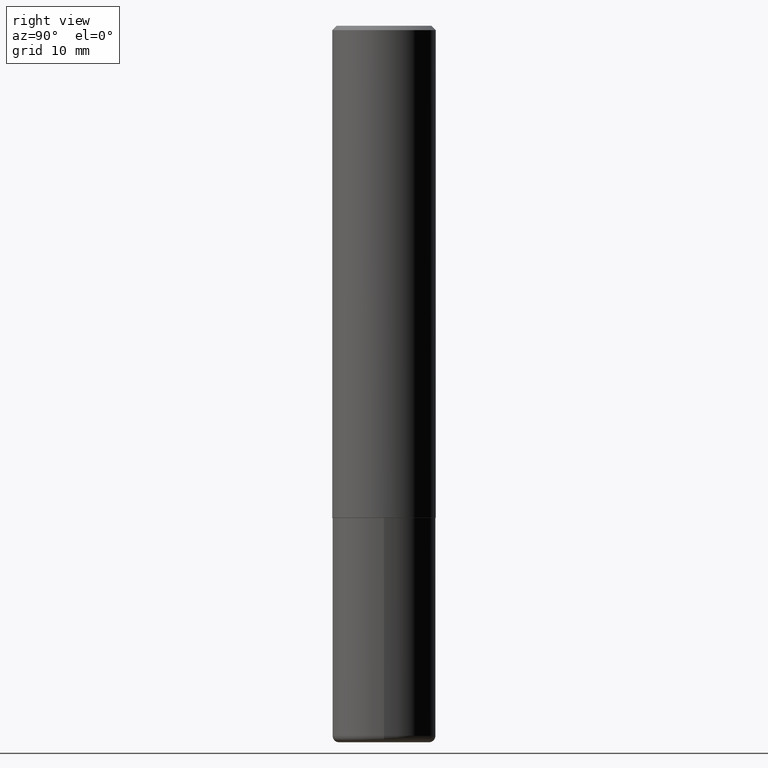
[diagram: clean part render]
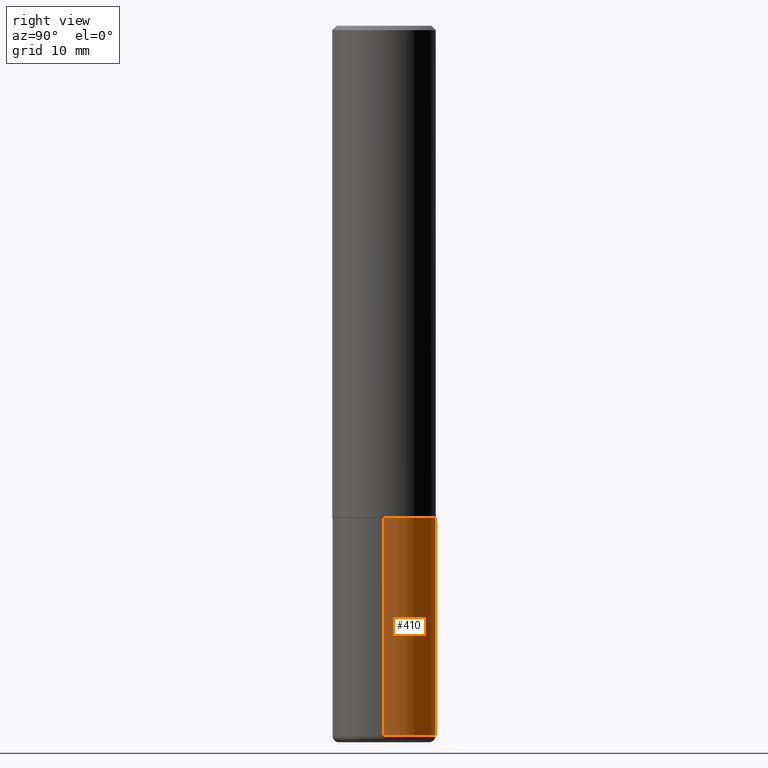
[diagram: same view with one face highlighted and labeled with its STEP entity id]
A machine part, right view. The second image highlights one B-rep face of the part: STEP entity #410.
In plain terms, the highlighted cylindrical surface (partial cylindrical patch) has radius 5.9995 mm, axis along (-0, 0, 1).
Its self-contained STEP definition (entity closure, byte-faithful):
#1 = DIRECTION ( 'NONE',  ( -2.445468806185136877E-29, 3.491481338843145188E-15, 1.000000000000000000 ) ) ;
#3 = CARTESIAN_POINT ( 'NONE',  ( 0.2361999999999999933, -9.484609056967400443E-15, -2.244100000000000428 ) ) ;
#4 = VECTOR ( 'NONE', #1, 39.37007874015748143 ) ;
#21 = ORIENTED_EDGE ( 'NONE', *, *, #30, .T. ) ;
#23 = CARTESIAN_POINT ( 'NONE',  ( 7.917694353785617077E-29, -1.130436913077245307E-14, -3.237700000000000244 ) ) ;
#30 = EDGE_CURVE ( 'NONE', #84, #211, #381, .T. ) ;
#47 = CYLINDRICAL_SURFACE ( 'NONE', #226, 0.2361999999999999933 ) ;
#81 = EDGE_CURVE ( 'NONE', #252, #84, #104, .T. ) ;
#84 = VERTEX_POINT ( 'NONE', #347 ) ;
#102 = DIRECTION ( 'NONE',  ( 1.000000000000000000, -6.982962677686269077E-15, 0.000000000000000000 ) ) ;
#104 = CIRCLE ( 'NONE', #294, 0.2361999999999999655 ) ;
#106 = AXIS2_PLACEMENT_3D ( 'NONE', #227, #358, #102 ) ;
#115 = EDGE_LOOP ( 'NONE', ( #125, #21, #310, #364 ) ) ;
#125 = ORIENTED_EDGE ( 'NONE', *, *, #81, .T. ) ;
#140 = CARTESIAN_POINT ( 'NONE',  ( -0.2361999999999999933, -7.891499259769821311E-15, -2.244100000000000428 ) ) ;
#150 = DIRECTION ( 'NONE',  ( -2.445468806185136877E-29, 3.491481338843145188E-15, 1.000000000000000000 ) ) ;
#181 = CARTESIAN_POINT ( 'NONE',  ( 0.000000000000000000, 0.000000000000000000, 0.000000000000000000 ) ) ;
#185 = CARTESIAN_POINT ( 'NONE',  ( 0.2361999999999999933, -1.649375784469496131E-15, 1.151752954443000088E-29 ) ) ;
#195 = CARTESIAN_POINT ( 'NONE',  ( -0.2361999999999999933, 1.678301941865356591E-15, -1.161852468318208757E-29 ) ) ;
#211 = VERTEX_POINT ( 'NONE', #140 ) ;
#215 = VERTEX_POINT ( 'NONE', #3 ) ;
#218 = DIRECTION ( 'NONE',  ( -2.445468806185136597E-29, 3.491481338843145583E-15, 1.000000000000000000 ) ) ;
#226 = AXIS2_PLACEMENT_3D ( 'NONE', #181, #404, #302 ) ;
#227 = CARTESIAN_POINT ( 'NONE',  ( 5.487876547960065873E-29, -7.835233272497903917E-15, -2.244100000000000428 ) ) ;
#252 = VERTEX_POINT ( 'NONE', #388 ) ;
#275 = EDGE_CURVE ( 'NONE', #215, #211, #308, .T. ) ;
#276 = FACE_OUTER_BOUND ( 'NONE', #115, .T. ) ;
#294 = AXIS2_PLACEMENT_3D ( 'NONE', #23, #218, #351 ) ;
#299 = LINE ( 'NONE', #185, #409 ) ;
#302 = DIRECTION ( 'NONE',  ( 1.000000000000000000, -6.982962677686266711E-15, 4.876176775795936353E-29 ) ) ;
#308 = CIRCLE ( 'NONE', #106, 0.2361999999999999933 ) ;
#310 = ORIENTED_EDGE ( 'NONE', *, *, #275, .F. ) ;
#347 = CARTESIAN_POINT ( 'NONE',  ( -0.2361999999999999655, -9.626067188907095099E-15, -3.237700000000000244 ) ) ;
#351 = DIRECTION ( 'NONE',  ( 1.000000000000000000, -6.982962677686265922E-15, 0.000000000000000000 ) ) ;
#358 = DIRECTION ( 'NONE',  ( -2.445468806185136597E-29, 3.491481338843145583E-15, 1.000000000000000000 ) ) ;
#364 = ORIENTED_EDGE ( 'NONE', *, *, #385, .F. ) ;
#381 = LINE ( 'NONE', #195, #4 ) ;
#385 = EDGE_CURVE ( 'NONE', #252, #215, #299, .T. ) ;
#388 = CARTESIAN_POINT ( 'NONE',  ( 0.2361999999999999655, -1.295374491524194802E-14, -3.237700000000000244 ) ) ;
#404 = DIRECTION ( 'NONE',  ( -2.445468806185136597E-29, 3.491481338843145583E-15, 1.000000000000000000 ) ) ;
#409 = VECTOR ( 'NONE', #150, 39.37007874015748143 ) ;
#410 = ADVANCED_FACE ( 'NONE', ( #276 ), #47, .T. ) ;